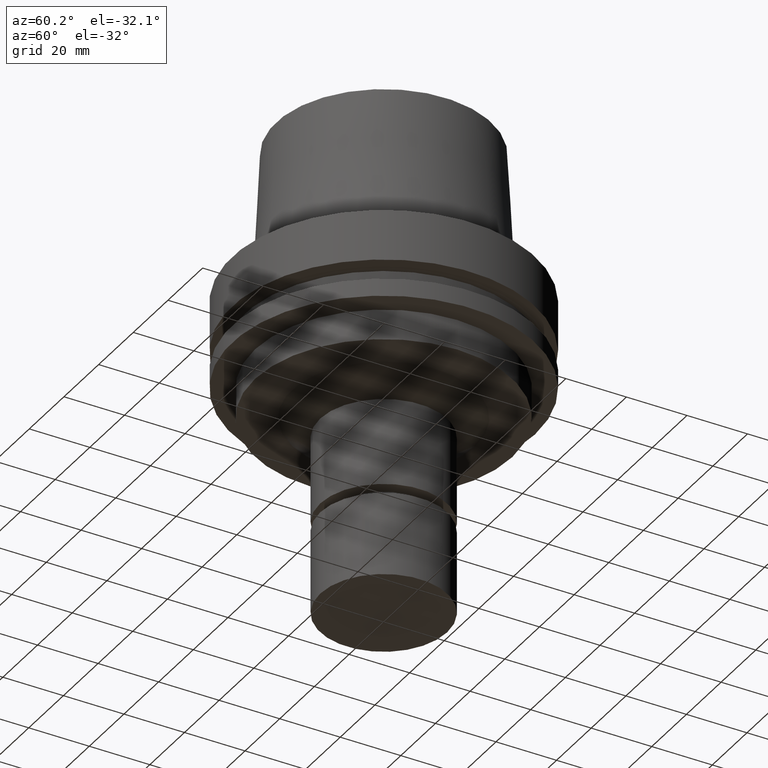
[diagram: clean part render]
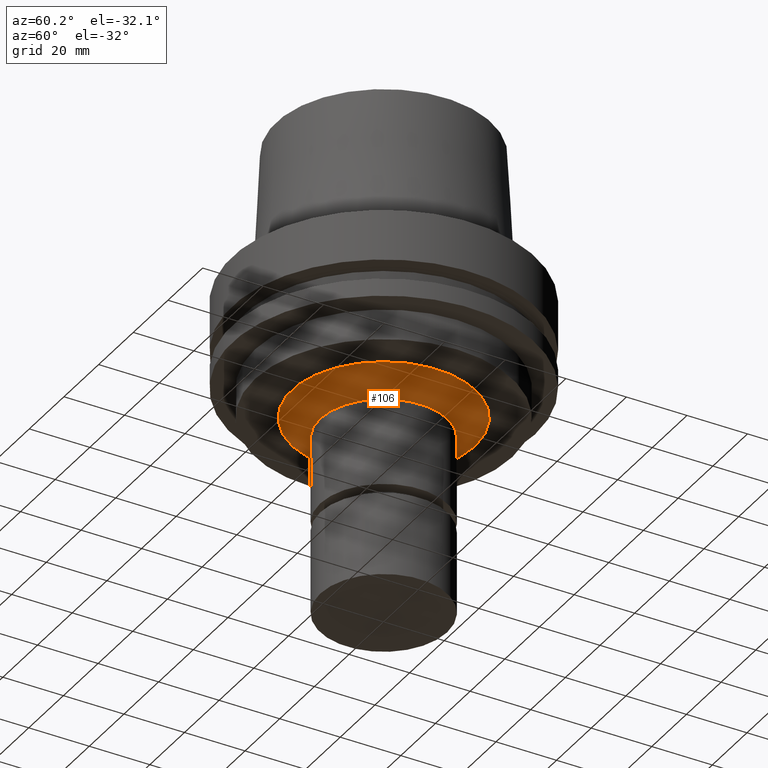
[diagram: same view with one face highlighted and labeled with its STEP entity id]
A machine part, auxiliary view. The second image highlights one B-rep face of the part: STEP entity #106.
In plain terms, the highlighted conical surface has half-angle 54.025 deg.
Its self-contained STEP definition (entity closure, byte-faithful):
#106=ADVANCED_FACE('Unnamed[1]',(#260,#261),#262,.T.);
#155=EDGE_CURVE('Unnamed[1]',#336,#336,#337,.T.);
#173=EDGE_CURVE('Unnamed[1]',#365,#365,#366,.T.);
#260=FACE_BOUND('',#468,.T.);
#261=FACE_BOUND('',#469,.T.);
#262=CONICAL_SURFACE('',#470,25.6596647228082,0.942916776538358);
#336=VERTEX_POINT('',#563);
#337=CIRCLE('',#564,21.0);
#365=VERTEX_POINT('',#599);
#366=CIRCLE('',#600,30.3193294456163);
#468=EDGE_LOOP('',(#696));
#469=EDGE_LOOP('',(#697));
#470=AXIS2_PLACEMENT_3D('',#698,#699,#700);
#563=CARTESIAN_POINT('',(2.80227603553221E-015,21.0,-45.76464067));
#564=AXIS2_PLACEMENT_3D('',#779,#780,#781);
#599=CARTESIAN_POINT('',(2.38806125833734E-015,30.3193294456163,-39.0));
#600=AXIS2_PLACEMENT_3D('',#812,#813,#814);
#696=ORIENTED_EDGE('',*,*,#155,.F.);
#697=ORIENTED_EDGE('',*,*,#173,.T.);
#698=CARTESIAN_POINT('',(2.59516864693478E-015,5.19033729386955E-015,-42.382320335));
#699=DIRECTION('',(-6.12323399573677E-017,-1.22464679914735E-016,1.0));
#700=DIRECTION('',(-1.23259516440783E-032,1.0,1.22464679914735E-016));
#779=CARTESIAN_POINT('',(2.80227603553221E-015,5.60455207106442E-015,-45.76464067));
#780=DIRECTION('',(6.12323399573677E-017,1.22464679914735E-016,-1.0));
#781=DIRECTION('',(-1.23259516440783E-032,1.0,1.22464679914735E-016));
#812=CARTESIAN_POINT('',(2.38806125833734E-015,4.77612251667468E-015,-39.0));
#813=DIRECTION('',(6.12323399573677E-017,1.22464679914735E-016,-1.0));
#814=DIRECTION('',(-1.23259516440783E-032,1.0,1.22464679914735E-016));